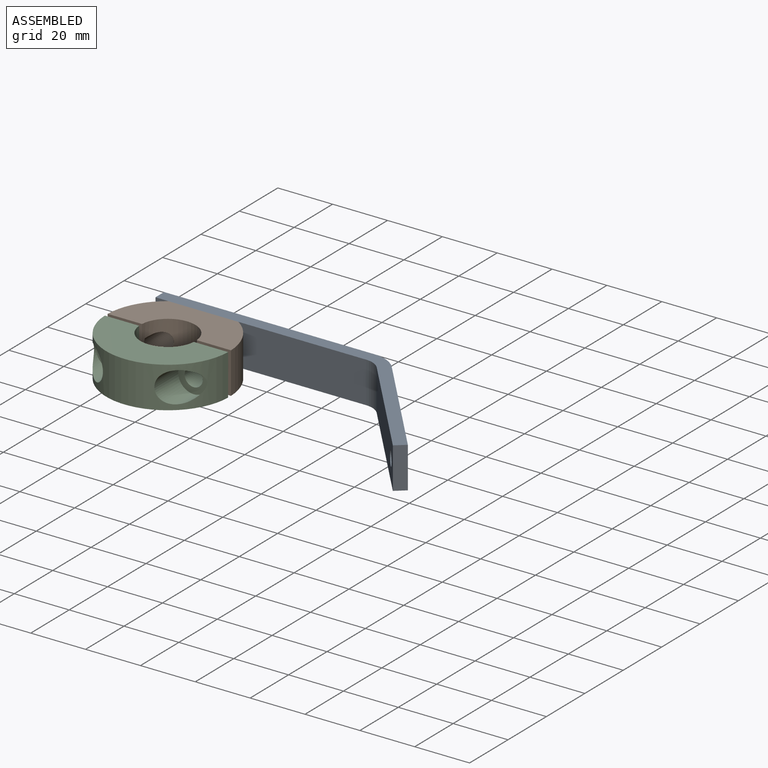
[diagram: assembled view]
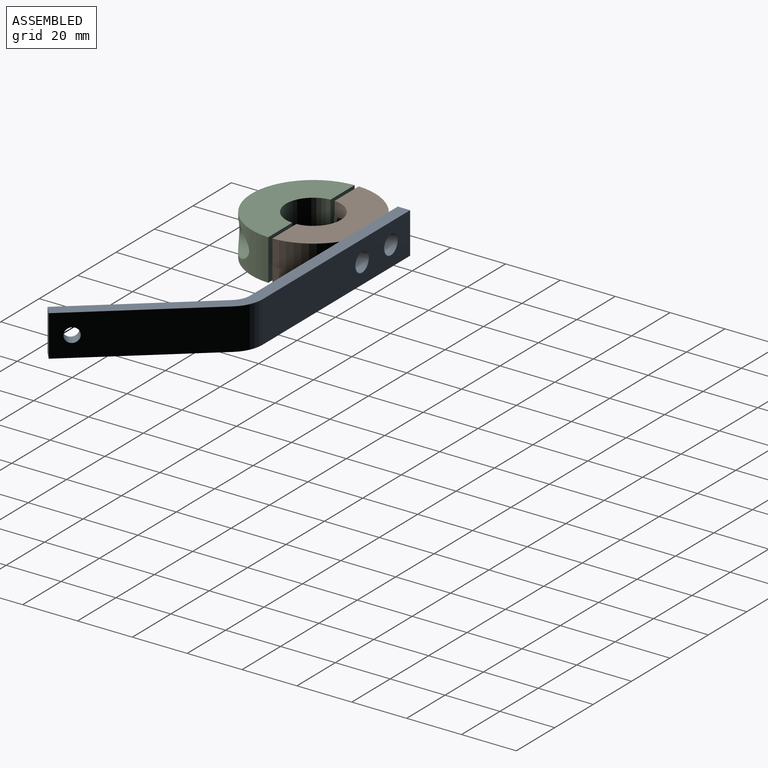
[diagram: assembled view, second angle]
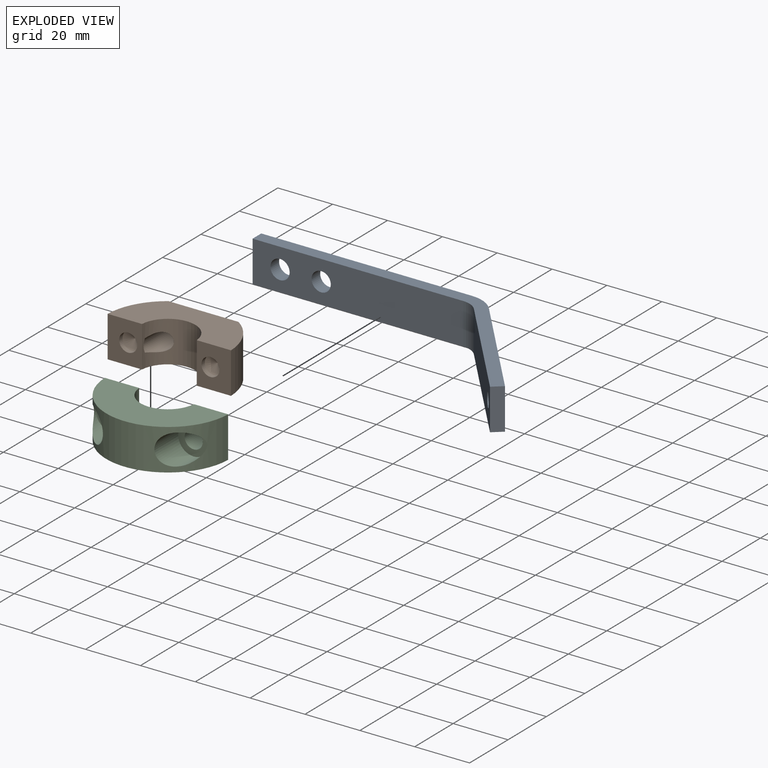
[diagram: exploded view]
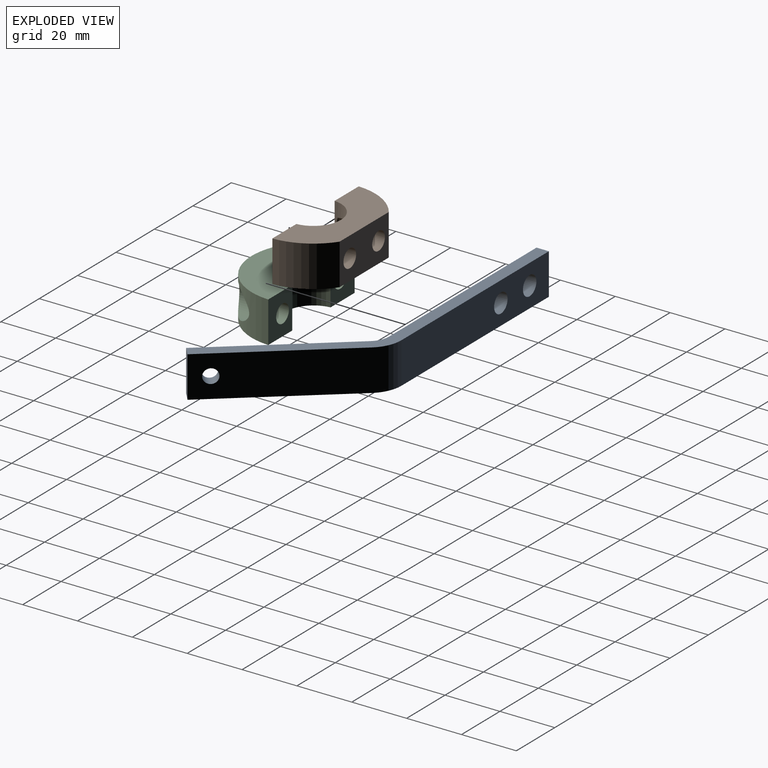
[diagram: exploded view, second angle]
ASSEMBLY  parts=3 mates=2
PART A: 13 faces, bbox 121.5x49.5x15 mm
  f0: plane 42.37x35.55mm, normal (-0.77,-0.64,0), area 808.4mm2, adj f1,f6,f7,f8,f11
  f1: cylinder r=7.5mm len=15mm, axis (0,0,-1), area 98.2mm2, adj f0,f2,f7,f8
  f2: plane 76.8x15mm, normal (0,-1,0), area 1075.1mm2, adj f1,f7,f8,f9,f10,f12
  f3: plane 76.8x15mm, normal (0,1,0), area 1075.1mm2, adj f4,f7,f8,f9,f10,f12
  f4: cylinder r=12mm len=15mm, axis (0,0,-1), area 157.1mm2, adj f3,f5,f7,f8
  f5: plane 42.37x35.55mm, normal (0.77,0.64,0), area 808.4mm2, adj f4,f6,f7,f8,f11
  f6: plane 15x3.45mm, normal (0.64,-0.77,0), area 67.5mm2, adj f0,f5,f7,f8
  f7: plane 121.55x49.55mm, normal (0,0,1), area 632.8mm2, adj f0,f1,f2,f3,f4,f5,f6,f12
  f8: plane 121.55x49.55mm, normal (0,0,-1), area 632.8mm2, adj f0,f1,f2,f3,f4,f5,f6,f12
  f9: cylinder r=3.5mm len=7mm, axis (0,-1,0), area 99mm2, adj f2,f3
  f10: cylinder r=3.5mm len=7mm, axis (0,-1,0), area 99mm2, adj f2,f3
  f11: cylinder r=2.6mm len=6.88mm, axis (-0.77,-0.64,0), area 73.5mm2, adj f0,f5
  f12: plane 15x4.5mm, normal (-1,0,0), area 67.5mm2, adj f2,f3,f7,f8
PART B: 16 faces, bbox 45x17.8x15 mm
  f0: cylinder r=10mm len=19.94mm, axis (0,0,-1), area 341.4mm2, adj f3,f4,f6,f7,f8,f9,f10,f11
  f1: plane 25.61x15mm, normal (0,1,0), area 315.8mm2, adj f2,f5,f6,f7,f9,f11
  f2: cylinder r=22.5mm len=17.75mm, axis (0,0,-1), area 314.5mm2, adj f1,f3,f6,f7
  f3: plane 15x12.52mm, normal (0,-1,0), area 153.5mm2, adj f0,f2,f6,f7,f14
  f4: plane 15x12.52mm, normal (0,-1,0), area 153.5mm2, adj f0,f5,f6,f7,f12
  f5: cylinder r=22.5mm len=17.75mm, axis (0,0,-1), area 314.5mm2, adj f1,f4,f6,f7
  f6: plane 44.98x17.75mm, normal (0,0,1), area 549.8mm2, adj f0,f1,f2,f3,f4,f5
  f7: plane 44.98x17.75mm, normal (0,0,-1), area 549.8mm2, adj f0,f1,f2,f3,f4,f5
  f8: cone r=0mm half-angle=59deg, axis (0,1,0), area 3.5mm2, adj f0,f9
  f9: cylinder r=3.3mm len=16.5mm, axis (0,1,0), area 262.9mm2, adj f0,f1,f8
  f10: cone r=0mm half-angle=59deg, axis (0,1,0), area 3.5mm2, adj f0,f11
  f11: cylinder r=3.3mm len=16.5mm, axis (0,1,0), area 262.9mm2, adj f0,f1,f10
  f12: cylinder r=3.3mm len=6.6mm, axis (0,-1,0), area 36.3mm2, adj f4,f13
  f13: cone r=0mm half-angle=59deg, axis (0,-1,0), area 39.9mm2, adj f12
  f14: cylinder r=3.3mm len=6.6mm, axis (0,-1,0), area 36.3mm2, adj f3,f15
  f15: cone r=0mm half-angle=59deg, axis (0,-1,0), area 39.9mm2, adj f14
PART C: 12 faces, bbox 45x21.8x15 mm
  f0: cylinder r=22.5mm len=44.98mm, axis (0,0,-1), area 754.6mm2, adj f1,f2,f4,f5,f6,f9
  f1: plane 15x12.52mm, normal (0,1,0), area 153.5mm2, adj f0,f3,f4,f5,f10
  f2: plane 15x12.52mm, normal (0,1,0), area 153.5mm2, adj f0,f3,f4,f5,f7
  f3: cylinder r=10mm len=19.94mm, axis (0,0,-1), area 448.7mm2, adj f1,f2,f4,f5
  f4: plane 44.98x21.75mm, normal (0,0,1), area 619.4mm2, adj f0,f1,f2,f3
  f5: plane 44.98x21.75mm, normal (0,0,-1), area 619.4mm2, adj f0,f1,f2,f3
  f6: cylinder r=5.62mm len=12.45mm, axis (0,-1,0), area 275.6mm2, adj f0,f8
  f7: cylinder r=3.3mm len=7.25mm, axis (0,-1,0), area 150.3mm2, adj f2,f8
  f8: plane 11.25x11.25mm, normal (0,-1,0), area 65.2mm2, adj f6,f7
  f9: cylinder r=5.62mm len=12.45mm, axis (0,-1,0), area 275.6mm2, adj f0,f11
  f10: cylinder r=3.3mm len=7.25mm, axis (0,-1,0), area 150.3mm2, adj f1,f11
  f11: plane 11.25x11.25mm, normal (0,-1,0), area 65.2mm2, adj f9,f10
PLACE A t=(0,4000,0)mm
PLACE B t=(0,4000,0)mm
PLACE C t=(0,4000,0)mm
MATE fastened B.f5 <-> C.f3  axis (0,0,1) through (0,0,15)mm
MATE fastened B.f8 <-> A.f9  axis (0,1,0) through (-7.5,18.5,7.5)mm
